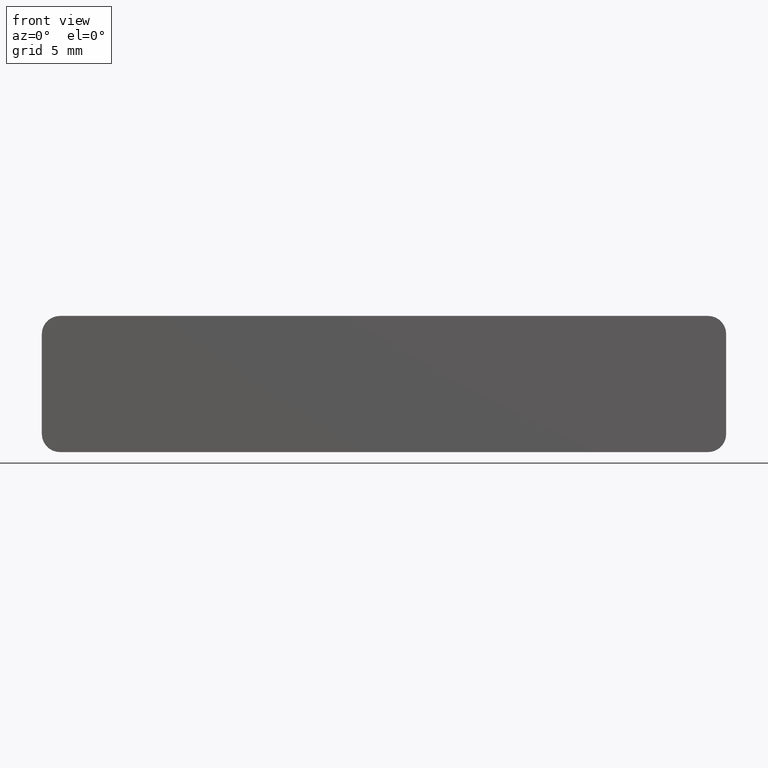
[diagram: clean part render]
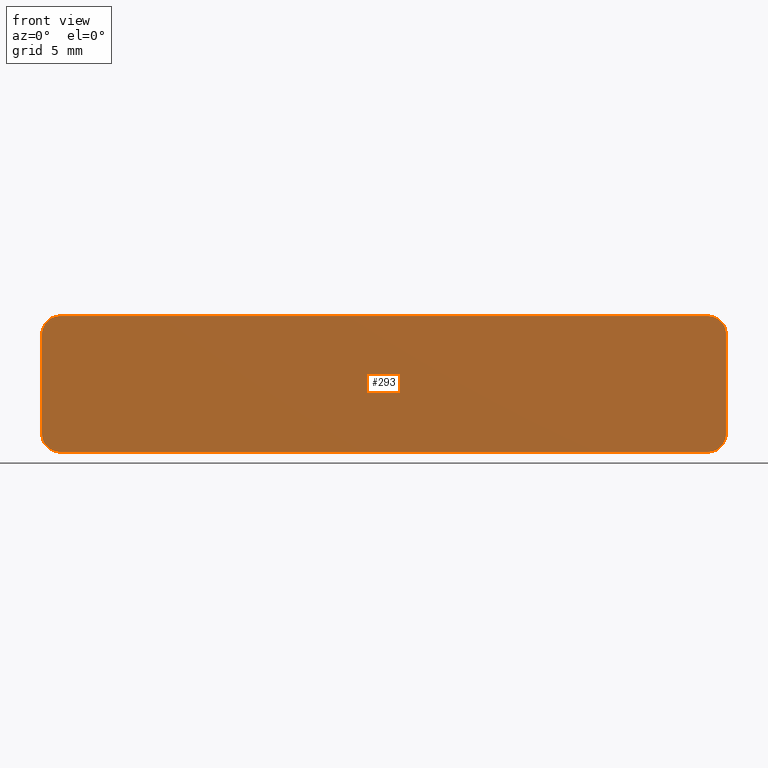
[diagram: same view with one face highlighted and labeled with its STEP entity id]
A machine part, front view. The second image highlights one B-rep face of the part: STEP entity #293.
In plain terms, the highlighted planar face has unit normal (0, -1, 0).
Its self-contained STEP definition (entity closure, byte-faithful):
#20=PLANE('',#348);
#40=FACE_OUTER_BOUND('',#58,.T.);
#58=EDGE_LOOP('',(#254,#255,#256,#257,#258,#259,#260,#261));
#64=CIRCLE('',#319,0.8);
#69=CIRCLE('',#329,0.8);
#71=CIRCLE('',#335,0.8);
#75=CIRCLE('',#344,0.8);
#88=LINE('',#500,#112);
#97=LINE('',#545,#121);
#98=LINE('',#547,#122);
#99=LINE('',#549,#123);
#112=VECTOR('',#396,10.);
#121=VECTOR('',#431,10.);
#122=VECTOR('',#434,10.);
#123=VECTOR('',#437,10.);
#125=VERTEX_POINT('',#443);
#126=VERTEX_POINT('',#445);
#134=VERTEX_POINT('',#483);
#135=VERTEX_POINT('',#485);
#139=VERTEX_POINT('',#499);
#140=VERTEX_POINT('',#503);
#146=VERTEX_POINT('',#537);
#147=VERTEX_POINT('',#539);
#149=EDGE_CURVE('',#125,#126,#64,.T.);
#162=EDGE_CURVE('',#134,#135,#69,.T.);
#169=EDGE_CURVE('',#135,#139,#88,.T.);
#171=EDGE_CURVE('',#139,#140,#71,.T.);
#182=EDGE_CURVE('',#146,#147,#75,.T.);
#185=EDGE_CURVE('',#147,#125,#97,.T.);
#186=EDGE_CURVE('',#126,#134,#98,.T.);
#187=EDGE_CURVE('',#140,#146,#99,.T.);
#254=ORIENTED_EDGE('',*,*,#149,.F.);
#255=ORIENTED_EDGE('',*,*,#185,.F.);
#256=ORIENTED_EDGE('',*,*,#182,.F.);
#257=ORIENTED_EDGE('',*,*,#187,.F.);
#258=ORIENTED_EDGE('',*,*,#171,.F.);
#259=ORIENTED_EDGE('',*,*,#169,.F.);
#260=ORIENTED_EDGE('',*,*,#162,.F.);
#261=ORIENTED_EDGE('',*,*,#186,.F.);
#293=ADVANCED_FACE('',(#40),#20,.T.);
#319=AXIS2_PLACEMENT_3D('',#446,#355,#356);
#329=AXIS2_PLACEMENT_3D('',#486,#381,#382);
#335=AXIS2_PLACEMENT_3D('',#504,#400,#401);
#344=AXIS2_PLACEMENT_3D('',#540,#423,#424);
#348=AXIS2_PLACEMENT_3D('',#548,#435,#436);
#355=DIRECTION('center_axis',(0.,1.,0.));
#356=DIRECTION('ref_axis',(-0.707106781186548,0.,-0.707106781186547));
#381=DIRECTION('center_axis',(0.,1.,0.));
#382=DIRECTION('ref_axis',(-0.707106781186548,0.,0.707106781186547));
#396=DIRECTION('',(1.,0.,0.));
#400=DIRECTION('center_axis',(0.,1.,0.));
#401=DIRECTION('ref_axis',(0.707106781186548,0.,0.707106781186547));
#423=DIRECTION('center_axis',(0.,1.,0.));
#424=DIRECTION('ref_axis',(0.707106781186548,0.,-0.707106781186547));
#431=DIRECTION('',(-1.,0.,0.));
#434=DIRECTION('',(0.,0.,1.));
#435=DIRECTION('center_axis',(0.,-1.,0.));
#436=DIRECTION('ref_axis',(0.,0.,-1.));
#437=DIRECTION('',(0.,0.,-1.));
#443=CARTESIAN_POINT('',(-14.28,0.,-3.));
#445=CARTESIAN_POINT('',(-15.08,0.,-2.2));
#446=CARTESIAN_POINT('Origin',(-14.28,0.,-2.2));
#483=CARTESIAN_POINT('',(-15.08,0.,2.2));
#485=CARTESIAN_POINT('',(-14.28,0.,3.));
#486=CARTESIAN_POINT('Origin',(-14.28,0.,2.2));
#499=CARTESIAN_POINT('',(14.28,0.,3.));
#500=CARTESIAN_POINT('',(0.,0.,3.));
#503=CARTESIAN_POINT('',(15.08,0.,2.2));
#504=CARTESIAN_POINT('Origin',(14.28,0.,2.2));
#537=CARTESIAN_POINT('',(15.08,0.,-2.2));
#539=CARTESIAN_POINT('',(14.28,0.,-3.));
#540=CARTESIAN_POINT('Origin',(14.28,0.,-2.2));
#545=CARTESIAN_POINT('',(0.,0.,-3.));
#547=CARTESIAN_POINT('',(-15.08,0.,3.));
#548=CARTESIAN_POINT('Origin',(0.,0.,3.));
#549=CARTESIAN_POINT('',(15.08,0.,3.));